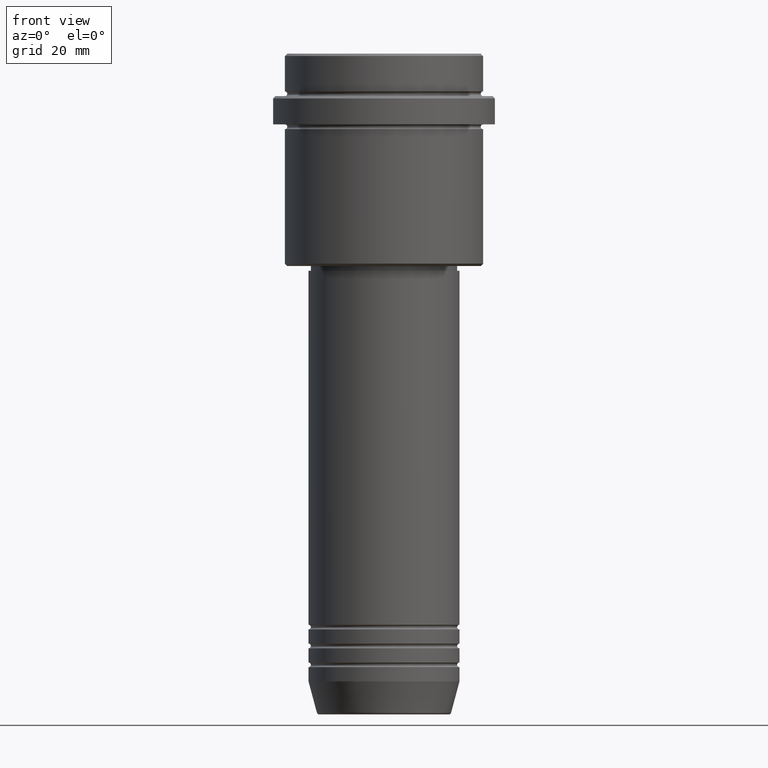
[diagram: clean part render]
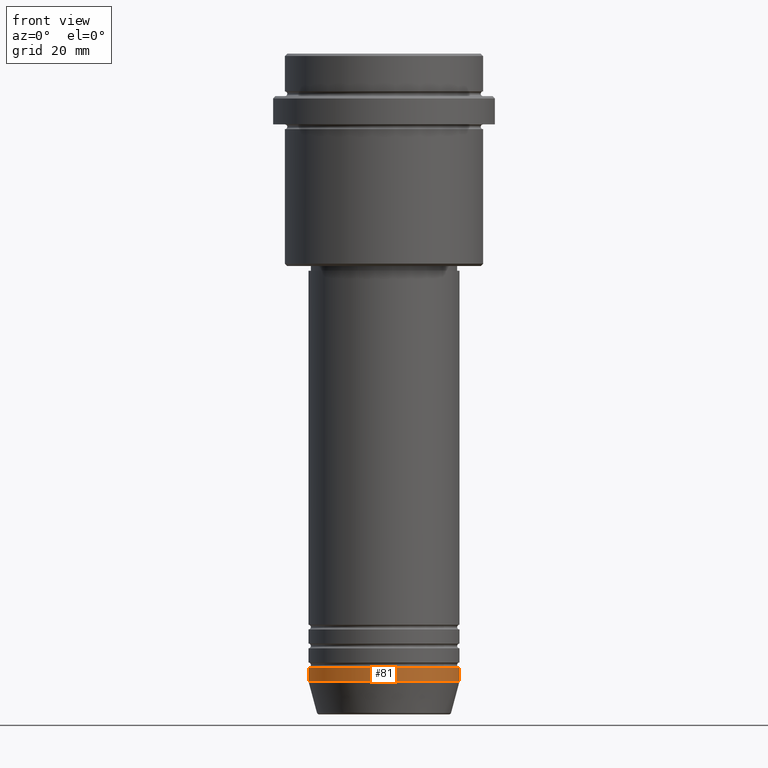
[diagram: same view with one face highlighted and labeled with its STEP entity id]
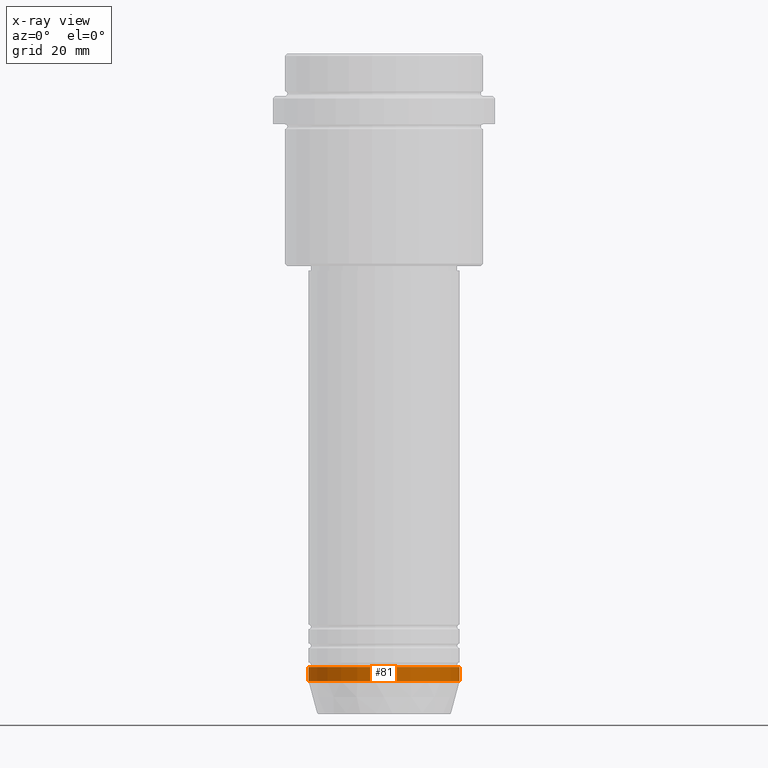
[diagram: x-ray of the same camera — body ghosted, the highlighted face saturated]
A machine part, front view. The second image highlights one B-rep face of the part: STEP entity #81.
The next image is the same camera in x-ray: the body ghosted, the highlighted face saturated — about 0% of this face is hidden behind the body in this view.
In plain terms, the highlighted cylindrical surface (partial cylindrical patch) has radius 16 mm, axis along (-0, -0, 1).
Its self-contained STEP definition (entity closure, byte-faithful):
#25 = AXIS2_PLACEMENT_3D ( 'NONE', #664, #1101, #700 ) ;
#26 = AXIS2_PLACEMENT_3D ( 'NONE', #596, #972, #1271 ) ;
#81 = ADVANCED_FACE ( 'NONE', ( #771 ), #1193, .T. ) ;
#108 = DIRECTION ( 'NONE',  ( -0.000000000000000000, -0.000000000000000000, 1.000000000000000000 ) ) ;
#216 = EDGE_CURVE ( 'NONE', #760, #451, #536, .T. ) ;
#245 = DIRECTION ( 'NONE',  ( -0.000000000000000000, -0.000000000000000000, 1.000000000000000000 ) ) ;
#360 = VERTEX_POINT ( 'NONE', #1228 ) ;
#364 = LINE ( 'NONE', #551, #836 ) ;
#451 = VERTEX_POINT ( 'NONE', #1226 ) ;
#483 = EDGE_CURVE ( 'NONE', #360, #451, #1103, .T. ) ;
#486 = EDGE_CURVE ( 'NONE', #529, #360, #581, .T. ) ;
#529 = VERTEX_POINT ( 'NONE', #570 ) ;
#536 = CIRCLE ( 'NONE', #26, 16.00000000000000000 ) ;
#551 = CARTESIAN_POINT ( 'NONE',  ( -16.00000000000000000, 1.959434878635765131E-15, 0.000000000000000000 ) ) ;
#555 = EDGE_LOOP ( 'NONE', ( #589, #1195, #1391, #1197 ) ) ;
#570 = CARTESIAN_POINT ( 'NONE',  ( -16.00000000000000000, 1.959434878635765131E-15, -133.0000000000000000 ) ) ;
#581 = CIRCLE ( 'NONE', #911, 16.00000000000000000 ) ;
#589 = ORIENTED_EDGE ( 'NONE', *, *, #590, .F. ) ;
#590 = EDGE_CURVE ( 'NONE', #529, #760, #364, .T. ) ;
#596 = CARTESIAN_POINT ( 'NONE',  ( 0.000000000000000000, 0.000000000000000000, -130.0000000000000000 ) ) ;
#632 = CARTESIAN_POINT ( 'NONE',  ( -16.00000000000000000, 1.959434878635765131E-15, -130.0000000000000000 ) ) ;
#664 = CARTESIAN_POINT ( 'NONE',  ( 0.000000000000000000, 0.000000000000000000, 0.000000000000000000 ) ) ;
#696 = DIRECTION ( 'NONE',  ( 1.000000000000000000, 0.000000000000000000, 0.000000000000000000 ) ) ;
#700 = DIRECTION ( 'NONE',  ( 1.000000000000000000, 0.000000000000000000, 0.000000000000000000 ) ) ;
#760 = VERTEX_POINT ( 'NONE', #632 ) ;
#771 = FACE_OUTER_BOUND ( 'NONE', #555, .T. ) ;
#777 = CARTESIAN_POINT ( 'NONE',  ( 0.000000000000000000, 0.000000000000000000, -133.0000000000000000 ) ) ;
#836 = VECTOR ( 'NONE', #1108, 1000.000000000000000 ) ;
#911 = AXIS2_PLACEMENT_3D ( 'NONE', #777, #108, #696 ) ;
#972 = DIRECTION ( 'NONE',  ( -0.000000000000000000, -0.000000000000000000, 1.000000000000000000 ) ) ;
#1015 = CARTESIAN_POINT ( 'NONE',  ( 16.00000000000000000, 0.000000000000000000, 0.000000000000000000 ) ) ;
#1086 = VECTOR ( 'NONE', #245, 1000.000000000000000 ) ;
#1101 = DIRECTION ( 'NONE',  ( -0.000000000000000000, -0.000000000000000000, 1.000000000000000000 ) ) ;
#1103 = LINE ( 'NONE', #1015, #1086 ) ;
#1108 = DIRECTION ( 'NONE',  ( -0.000000000000000000, -0.000000000000000000, 1.000000000000000000 ) ) ;
#1193 = CYLINDRICAL_SURFACE ( 'NONE', #25, 16.00000000000000000 ) ;
#1195 = ORIENTED_EDGE ( 'NONE', *, *, #486, .T. ) ;
#1197 = ORIENTED_EDGE ( 'NONE', *, *, #216, .F. ) ;
#1226 = CARTESIAN_POINT ( 'NONE',  ( 16.00000000000000000, 0.000000000000000000, -130.0000000000000000 ) ) ;
#1228 = CARTESIAN_POINT ( 'NONE',  ( 16.00000000000000000, 0.000000000000000000, -133.0000000000000000 ) ) ;
#1271 = DIRECTION ( 'NONE',  ( 1.000000000000000000, 0.000000000000000000, 0.000000000000000000 ) ) ;
#1391 = ORIENTED_EDGE ( 'NONE', *, *, #483, .T. ) ;